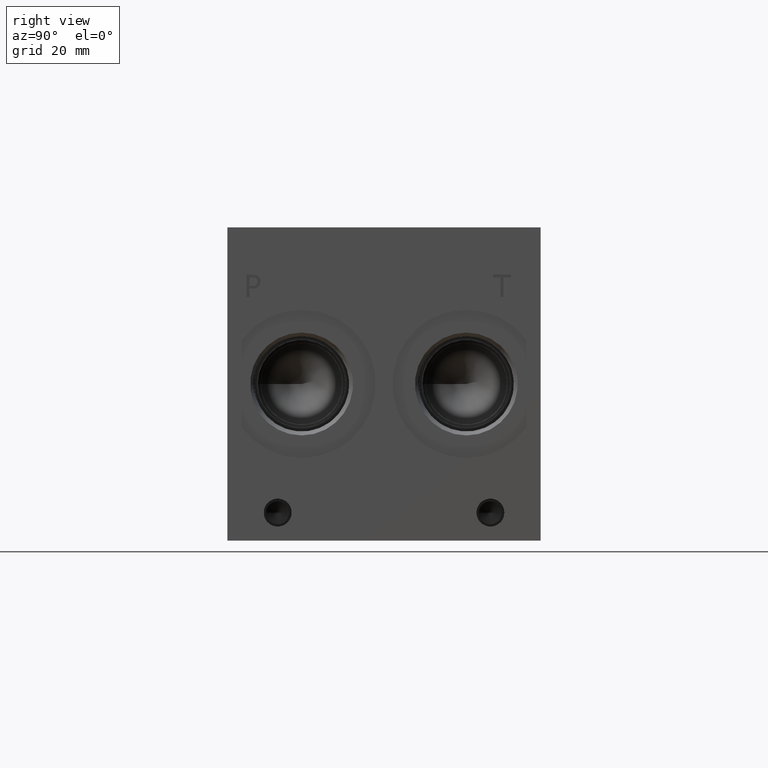
[diagram: clean part render]
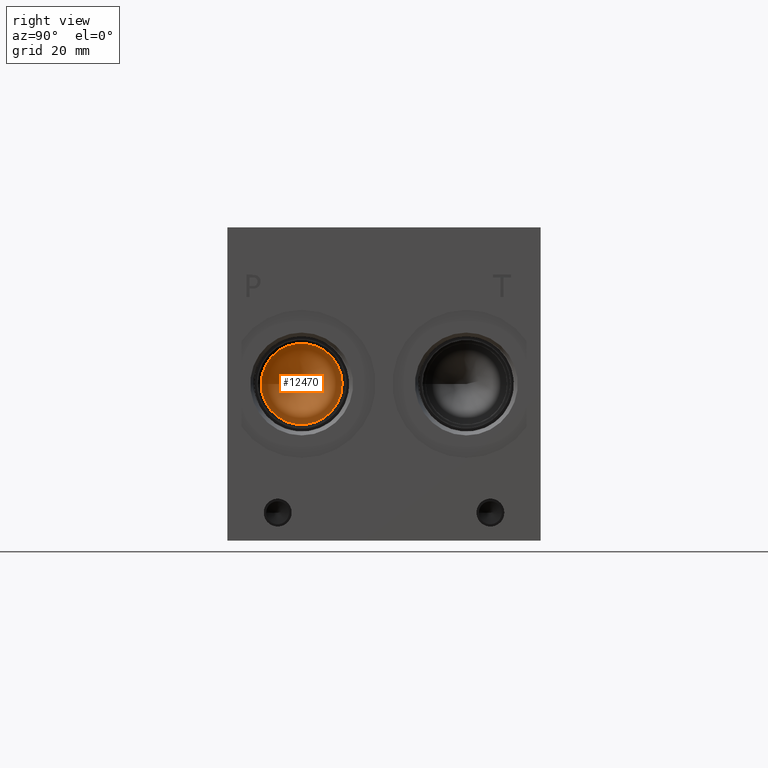
[diagram: same view with one face highlighted and labeled with its STEP entity id]
A machine part, right view. The second image highlights one B-rep face of the part: STEP entity #12470.
In plain terms, the highlighted conical surface has half-angle 60 deg.
Its self-contained STEP definition (entity closure, byte-faithful):
#103=CONICAL_SURFACE('',#13052,5.7531,1.0471975511966);
#230=CIRCLE('',#13053,11.5062);
#231=CIRCLE('',#13054,11.5062);
#1411=FACE_OUTER_BOUND('',#2126,.T.);
#2126=EDGE_LOOP('',(#10648,#10649,#10650,#10651));
#3316=LINE('',#21144,#4442);
#4442=VECTOR('',#15290,5.7531);
#5848=VERTEX_POINT('',#21140);
#5849=VERTEX_POINT('',#21141);
#5850=VERTEX_POINT('',#21143);
#7513=EDGE_CURVE('',#5848,#5849,#230,.T.);
#7514=EDGE_CURVE('',#5849,#5850,#3316,.T.);
#7515=EDGE_CURVE('',#5849,#5848,#231,.T.);
#10648=ORIENTED_EDGE('',*,*,#7513,.T.);
#10649=ORIENTED_EDGE('',*,*,#7514,.T.);
#10650=ORIENTED_EDGE('',*,*,#7514,.F.);
#10651=ORIENTED_EDGE('',*,*,#7515,.T.);
#12470=ADVANCED_FACE('',(#1411),#103,.F.);
#13052=AXIS2_PLACEMENT_3D('',#21139,#15286,#15287);
#13053=AXIS2_PLACEMENT_3D('',#21142,#15288,#15289);
#13054=AXIS2_PLACEMENT_3D('',#21145,#15291,#15292);
#15286=DIRECTION('center_axis',(1.,0.,0.));
#15287=DIRECTION('ref_axis',(0.,1.,0.));
#15288=DIRECTION('center_axis',(1.,0.,0.));
#15289=DIRECTION('ref_axis',(0.,1.,0.));
#15290=DIRECTION('',(-0.5,0.866025403784439,1.06057523872491E-16));
#15291=DIRECTION('center_axis',(1.,0.,0.));
#15292=DIRECTION('ref_axis',(0.,1.,0.));
#21139=CARTESIAN_POINT('Origin',(130.790446166325,21.082,44.45));
#21140=CARTESIAN_POINT('',(134.112,32.5882,44.45));
#21141=CARTESIAN_POINT('',(134.112,9.5758,44.45));
#21142=CARTESIAN_POINT('Origin',(134.112,21.082,44.45));
#21143=CARTESIAN_POINT('',(127.46889233265,21.082,44.45));
#21144=CARTESIAN_POINT('',(130.790446166325,15.3289,44.45));
#21145=CARTESIAN_POINT('Origin',(134.112,21.082,44.45));